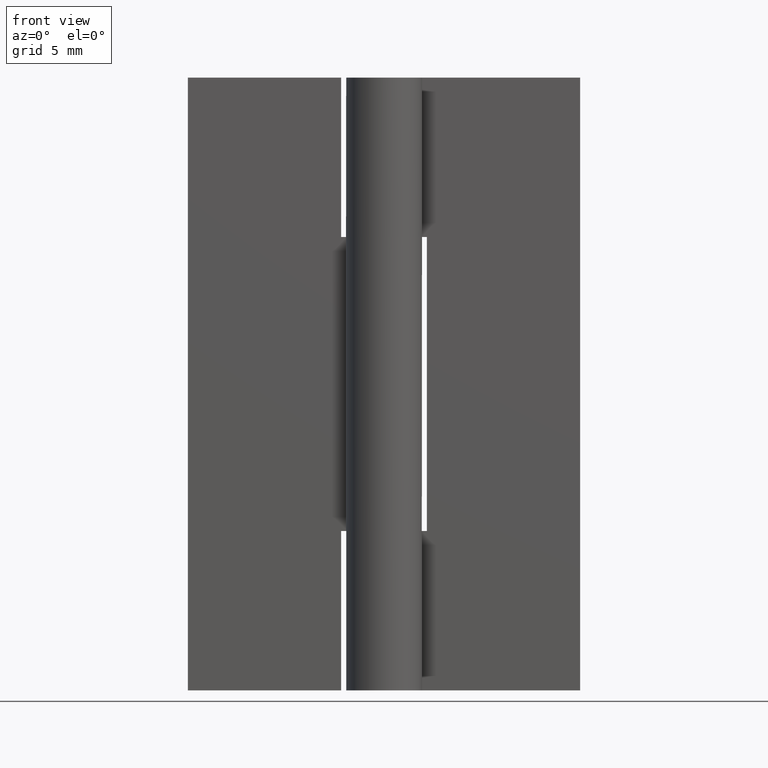
[diagram: clean part render]
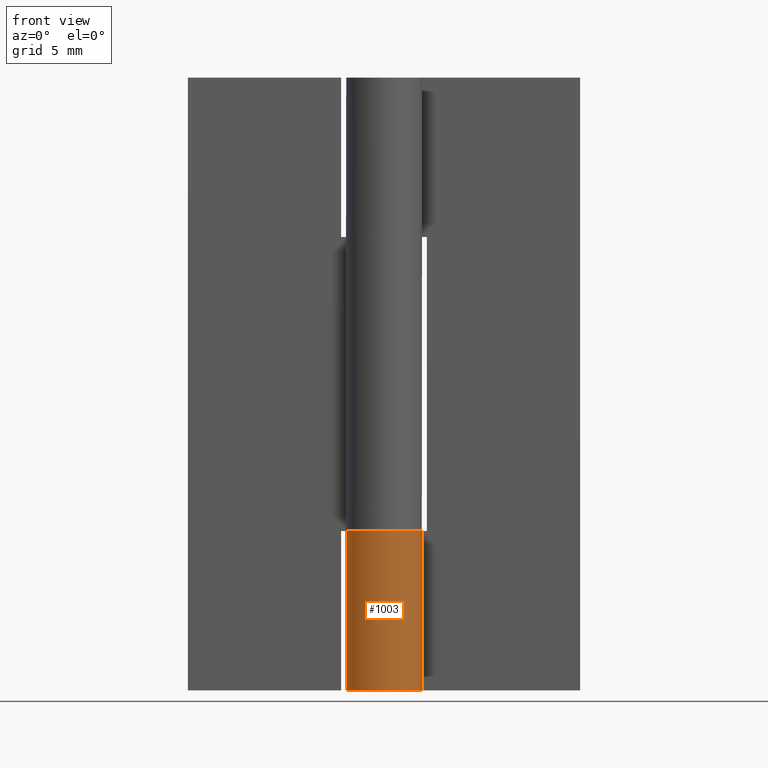
[diagram: same view with one face highlighted and labeled with its STEP entity id]
A machine part, front view. The second image highlights one B-rep face of the part: STEP entity #1003.
In plain terms, the highlighted face is a freeform B-spline surface patch.
Its self-contained STEP definition (entity closure, byte-faithful):
#597=CARTESIAN_POINT('',(2.739981751764050,1.450000000000000,13.0));
#598=VERTEX_POINT('',#597);
#599=CARTESIAN_POINT('',(0.0,3.099998000000000,13.0));
#600=VERTEX_POINT('',#599);
#601=CARTESIAN_POINT('',(2.739981751764050,1.450000000000000,13.0));
#602=CARTESIAN_POINT('',(3.842027408336779,-0.632471143840417,13.0));
#603=CARTESIAN_POINT('',(2.130594885355309,-2.251790737784723,13.0));
#604=CARTESIAN_POINT('',(0.419162362373838,-3.871110331729029,13.0));
#605=CARTESIAN_POINT('',(-1.599218559171949,-2.655655344977900,13.0));
#606=CARTESIAN_POINT('',(-3.617599480717734,-1.440200358226770,13.0));
#607=CARTESIAN_POINT('',(-2.986848545660751,0.829898189834370,13.0));
#608=CARTESIAN_POINT('',(-2.356097610603767,3.099996737895512,13.0));
#609=CARTESIAN_POINT('',(0.0,3.099998000000000,13.0));
#617=(BOUNDED_CURVE()B_SPLINE_CURVE(2,(#601,#602,#603,#604,#605,#606,#607,#608,#609),.UNSPECIFIED.,.F.,.U.)B_SPLINE_CURVE_WITH_KNOTS((3,2,2,2,3),(0.0,0.250000000000000,0.500000000000000,0.750000000000000,1.0),.UNSPECIFIED.)CURVE()GEOMETRIC_REPRESENTATION_ITEM()RATIONAL_B_SPLINE_CURVE((1.0,0.796150117301085,1.0,0.796150117301085,1.0,0.796150117301085,1.0,0.796150117301085,1.0))REPRESENTATION_ITEM(''));
#618=EDGE_CURVE('',#598,#600,#617,.T.);
#662=CARTESIAN_POINT('',(0.003521362805220,3.099998000000000,13.0));
#663=VERTEX_POINT('',#662);
#669=CARTESIAN_POINT('',(0.003521362805220,3.099998000000000,13.0));
#670=CARTESIAN_POINT('',(0.0,3.099998000000000,13.0));
#671=QUASI_UNIFORM_CURVE('',1,(#669,#670),.UNSPECIFIED.,.F.,.U.);
#672=EDGE_CURVE('',#663,#600,#671,.T.);
#780=CARTESIAN_POINT('',(2.739981751764050,1.450000000000000,0.0));
#781=VERTEX_POINT('',#780);
#782=CARTESIAN_POINT('',(0.003521362805220,3.099998000000000,0.0));
#783=VERTEX_POINT('',#782);
#784=CARTESIAN_POINT('',(2.739981751764050,1.450000000000002,0.0));
#785=CARTESIAN_POINT('',(3.842352259281344,-0.633086258124314,0.0));
#786=CARTESIAN_POINT('',(2.129955333572986,-2.252396562993291,0.0));
#787=CARTESIAN_POINT('',(0.417558407864627,-3.871706867862268,0.0));
#788=CARTESIAN_POINT('',(-1.600726611546711,-2.654745621540072,0.0));
#789=CARTESIAN_POINT('',(-3.619011630958046,-1.437784375217877,0.0));
#790=CARTESIAN_POINT('',(-2.986140433580759,0.832445380150624,0.0));
#791=CARTESIAN_POINT('',(-2.353269236203469,3.102675135519129,0.0));
#792=CARTESIAN_POINT('',(0.003521362805217,3.099997999999999,0.0));
#800=(BOUNDED_CURVE()B_SPLINE_CURVE(2,(#784,#785,#786,#787,#788,#789,#790,#791,#792),.UNSPECIFIED.,.F.,.U.)B_SPLINE_CURVE_WITH_KNOTS((3,2,2,2,3),(0.0,0.250000000000000,0.500000000000000,0.750000000000000,1.0),.UNSPECIFIED.)CURVE()GEOMETRIC_REPRESENTATION_ITEM()RATIONAL_B_SPLINE_CURVE((1.0,0.796064190964140,1.0,0.796064190964140,1.0,0.796064190964140,1.0,0.796064190964140,1.0))REPRESENTATION_ITEM(''));
#801=EDGE_CURVE('',#781,#783,#800,.T.);
#951=CARTESIAN_POINT('',(0.003521362805220,3.099998000000000,0.0));
#952=CARTESIAN_POINT('',(0.003521362805220,3.099998000000000,13.0));
#953=QUASI_UNIFORM_CURVE('',1,(#951,#952),.UNSPECIFIED.,.F.,.U.);
#954=EDGE_CURVE('',#783,#663,#953,.T.);
#970=CARTESIAN_POINT('',(2.701086253403874,1.521227481895005,-0.325000000000000));
#971=CARTESIAN_POINT('',(2.701086253403874,1.521227481895005,13.333125000000001));
#972=CARTESIAN_POINT('',(4.535584156375530,-1.736100647256542,-0.325000000000000));
#973=CARTESIAN_POINT('',(4.535584156375530,-1.736100647256542,13.333125000000003));
#974=CARTESIAN_POINT('',(0.994984302584502,-2.935984713449718,-0.325000000000000));
#975=CARTESIAN_POINT('',(0.994984302584502,-2.935984713449718,13.333125000000001));
#976=CARTESIAN_POINT('',(-2.545615551206526,-4.135868779642896,-0.325000000000000));
#977=CARTESIAN_POINT('',(-2.545615551206526,-4.135868779642896,13.333125000000003));
#978=CARTESIAN_POINT('',(-3.069419339239028,-0.434355752702138,-0.325000000000000));
#979=CARTESIAN_POINT('',(-3.069419339239028,-0.434355752702138,13.333125000000001));
#980=CARTESIAN_POINT('',(-3.593223127271530,3.267157274238619,-0.325000000000000));
#981=CARTESIAN_POINT('',(-3.593223127271530,3.267157274238619,13.333125000000003));
#982=CARTESIAN_POINT('',(0.141283570192311,3.096778802690581,-0.325000000000000));
#983=CARTESIAN_POINT('',(0.141283570192311,3.096778802690581,13.333125000000001));
#991=(BOUNDED_SURFACE()B_SPLINE_SURFACE(1,2,((#970,#972,#974,#976,#978,#980,#982),(#971,#973,#975,#977,#979,#981,#983)),.UNSPECIFIED.,.F.,.F.,.U.)B_SPLINE_SURFACE_WITH_KNOTS((2,2),(3,2,2,3),(0.0,13.658125000000011),(0.0,5.826188062565751,11.652376125131500,17.478564187697248),.UNSPECIFIED.)GEOMETRIC_REPRESENTATION_ITEM()RATIONAL_B_SPLINE_SURFACE(((1.0,0.638320090924328,1.0,0.638320090924328,1.0,0.638320090924328,1.0),(1.0,0.638320090924328,1.0,0.638320090924328,1.0,0.638320090924328,1.0)))REPRESENTATION_ITEM('')SURFACE());
#992=ORIENTED_EDGE('',*,*,#618,.T.);
#993=ORIENTED_EDGE('',*,*,#672,.F.);
#994=ORIENTED_EDGE('',*,*,#954,.F.);
#995=ORIENTED_EDGE('',*,*,#801,.F.);
#996=CARTESIAN_POINT('',(2.739981751764050,1.450000000000000,0.0));
#997=CARTESIAN_POINT('',(2.739981751764050,1.450000000000000,13.0));
#998=QUASI_UNIFORM_CURVE('',1,(#996,#997),.UNSPECIFIED.,.F.,.U.);
#999=EDGE_CURVE('',#781,#598,#998,.T.);
#1000=ORIENTED_EDGE('',*,*,#999,.T.);
#1001=EDGE_LOOP('',(#992,#993,#994,#995,#1000));
#1002=FACE_OUTER_BOUND('',#1001,.T.);
#1003=ADVANCED_FACE('',(#1002),#991,.T.);